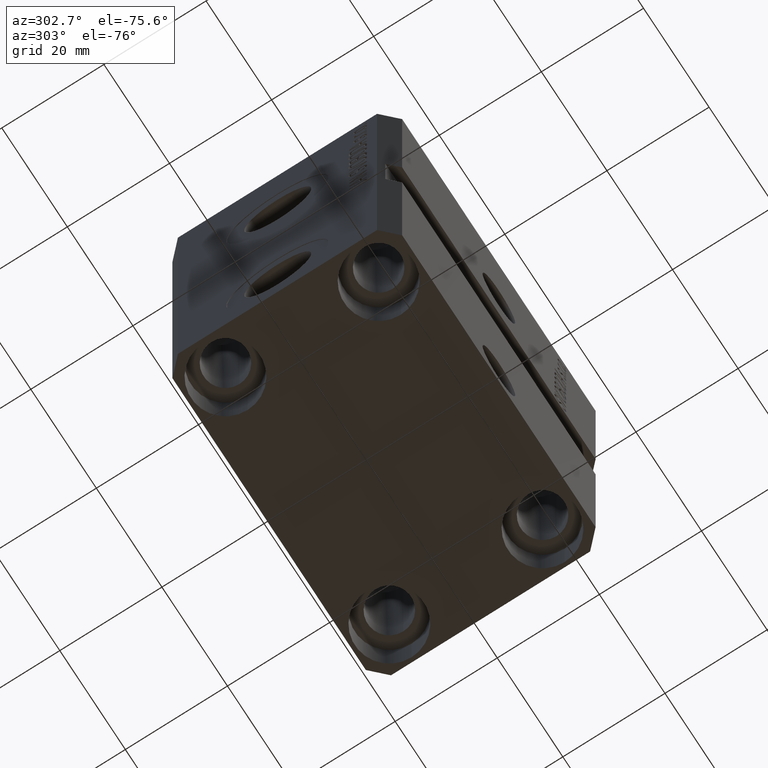
[diagram: clean part render]
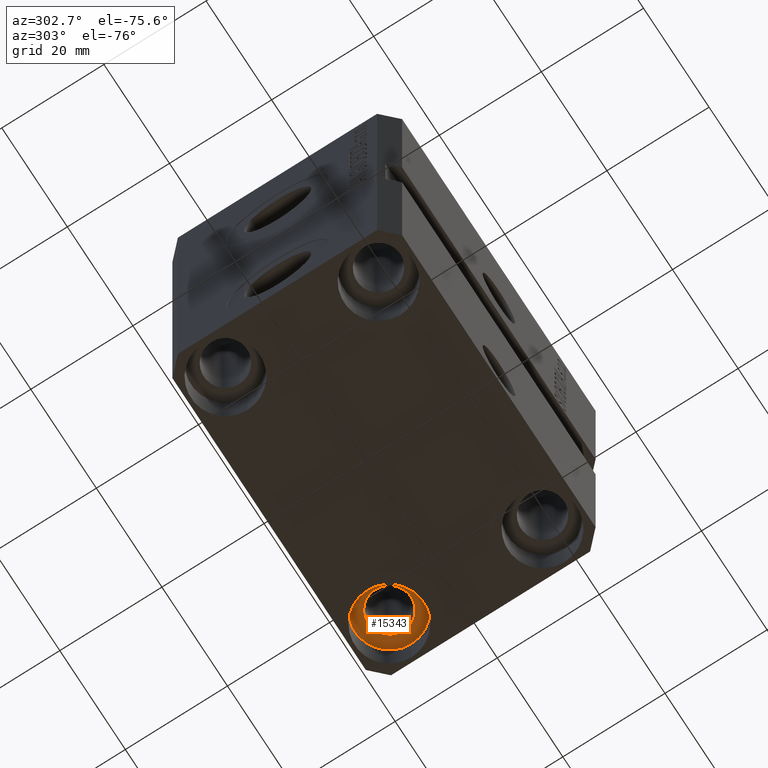
[diagram: same view with one face highlighted and labeled with its STEP entity id]
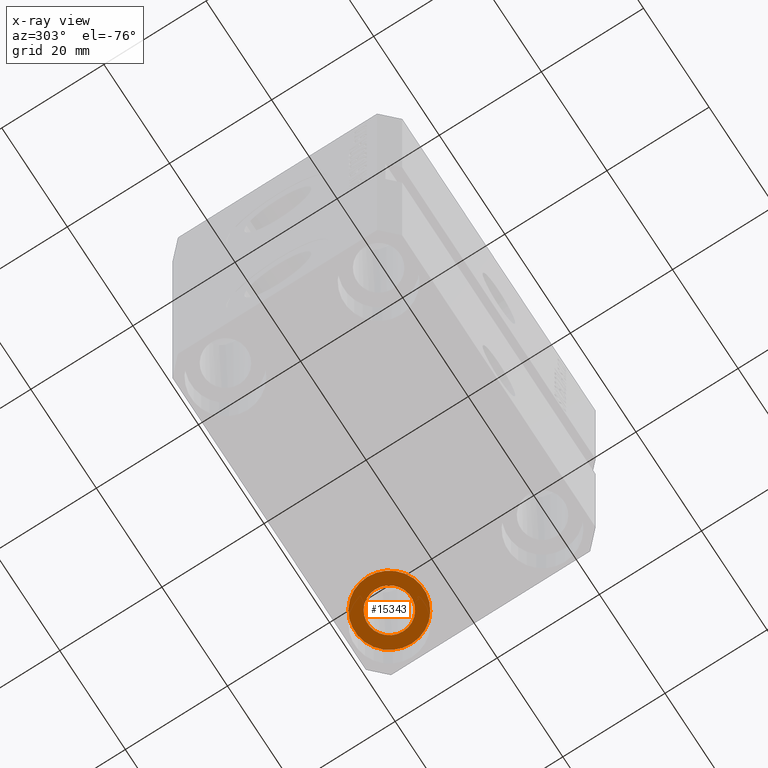
[diagram: x-ray of the same camera — body ghosted, the highlighted face saturated]
A machine part, auxiliary view. The second image highlights one B-rep face of the part: STEP entity #15343.
The next image is the same camera in x-ray: the body ghosted, the highlighted face saturated — about 0% of this face is hidden behind the body in this view.
In plain terms, the highlighted planar face has unit normal (0, 0, -1).
Its self-contained STEP definition (entity closure, byte-faithful):
#444 = CIRCLE ( 'NONE', #42774, 4.249999999958450125 ) ;
#643 = DIRECTION ( 'NONE',  ( 0.000000000000000000, 0.000000000000000000, -1.000000000000000000 ) ) ;
#1926 = ORIENTED_EDGE ( 'NONE', *, *, #36488, .F. ) ;
#1984 = ORIENTED_EDGE ( 'NONE', *, *, #39468, .F. ) ;
#4205 = AXIS2_PLACEMENT_3D ( 'NONE', #29448, #11511, #18690 ) ;
#4321 = VERTEX_POINT ( 'NONE', #6157 ) ;
#5526 = CARTESIAN_POINT ( 'NONE',  ( 31.74999999995845101, 15.00000000000000888, -68.00000000000000000 ) ) ;
#6157 = CARTESIAN_POINT ( 'NONE',  ( 18.25000000004154543, 15.00000000000000888, -68.00000000000000000 ) ) ;
#6899 = DIRECTION ( 'NONE',  ( -1.000000000000000000, 0.000000000000000000, 0.000000000000000000 ) ) ;
#7946 = EDGE_LOOP ( 'NONE', ( #1926, #1984 ) ) ;
#11107 = AXIS2_PLACEMENT_3D ( 'NONE', #28267, #643, #21549 ) ;
#11511 = DIRECTION ( 'NONE',  ( 0.000000000000000000, 0.000000000000000000, -1.000000000000000000 ) ) ;
#12508 = CIRCLE ( 'NONE', #33317, 6.749999999958452790 ) ;
#14575 = VERTEX_POINT ( 'NONE', #15976 ) ;
#15343 = ADVANCED_FACE ( 'NONE', ( #41597, #31711 ), #31935, .T. ) ;
#15573 = DIRECTION ( 'NONE',  ( -0.000000000000000000, -0.000000000000000000, 1.000000000000000000 ) ) ;
#15976 = CARTESIAN_POINT ( 'NONE',  ( 29.24999999995844746, 15.00000000000000888, -68.00000000000000000 ) ) ;
#16138 = CIRCLE ( 'NONE', #11107, 4.249999999958450125 ) ;
#17301 = ORIENTED_EDGE ( 'NONE', *, *, #34633, .F. ) ;
#18690 = DIRECTION ( 'NONE',  ( 1.000000000000000000, 0.000000000000000000, 0.000000000000000000 ) ) ;
#20504 = VERTEX_POINT ( 'NONE', #5526 ) ;
#21549 = DIRECTION ( 'NONE',  ( -1.000000000000000000, 0.000000000000000000, 0.000000000000000000 ) ) ;
#23972 = DIRECTION ( 'NONE',  ( 0.000000000000000000, 0.000000000000000000, -1.000000000000000000 ) ) ;
#26342 = DIRECTION ( 'NONE',  ( 1.000000000000000000, 0.000000000000000000, 0.000000000000000000 ) ) ;
#26678 = CARTESIAN_POINT ( 'NONE',  ( 24.99999999999999645, 15.00000000000000888, -68.00000000000000000 ) ) ;
#28267 = CARTESIAN_POINT ( 'NONE',  ( 24.99999999999999645, 15.00000000000000888, -68.00000000000000000 ) ) ;
#29448 = CARTESIAN_POINT ( 'NONE',  ( 24.99999999999999645, 15.00000000000000888, -68.00000000000000000 ) ) ;
#29705 = CARTESIAN_POINT ( 'NONE',  ( 24.99999999999999645, 15.00000000000000888, -68.00000000000000000 ) ) ;
#31391 = ORIENTED_EDGE ( 'NONE', *, *, #44147, .F. ) ;
#31711 = FACE_OUTER_BOUND ( 'NONE', #34406, .T. ) ;
#31935 = PLANE ( 'NONE',  #4205 ) ;
#32920 = CARTESIAN_POINT ( 'NONE',  ( 20.75000000004154899, 15.00000000000000888, -68.00000000000000000 ) ) ;
#33317 = AXIS2_PLACEMENT_3D ( 'NONE', #29705, #15573, #26342 ) ;
#34283 = AXIS2_PLACEMENT_3D ( 'NONE', #26678, #37017, #36578 ) ;
#34406 = EDGE_LOOP ( 'NONE', ( #17301, #31391 ) ) ;
#34633 = EDGE_CURVE ( 'NONE', #4321, #20504, #12508, .T. ) ;
#35226 = VERTEX_POINT ( 'NONE', #32920 ) ;
#36488 = EDGE_CURVE ( 'NONE', #14575, #35226, #16138, .T. ) ;
#36578 = DIRECTION ( 'NONE',  ( 1.000000000000000000, 0.000000000000000000, 0.000000000000000000 ) ) ;
#37017 = DIRECTION ( 'NONE',  ( -0.000000000000000000, -0.000000000000000000, 1.000000000000000000 ) ) ;
#39468 = EDGE_CURVE ( 'NONE', #35226, #14575, #444, .T. ) ;
#41252 = CARTESIAN_POINT ( 'NONE',  ( 24.99999999999999645, 15.00000000000000888, -68.00000000000000000 ) ) ;
#41597 = FACE_BOUND ( 'NONE', #7946, .T. ) ;
#42774 = AXIS2_PLACEMENT_3D ( 'NONE', #41252, #23972, #6899 ) ;
#42903 = CIRCLE ( 'NONE', #34283, 6.749999999958452790 ) ;
#44147 = EDGE_CURVE ( 'NONE', #20504, #4321, #42903, .T. ) ;